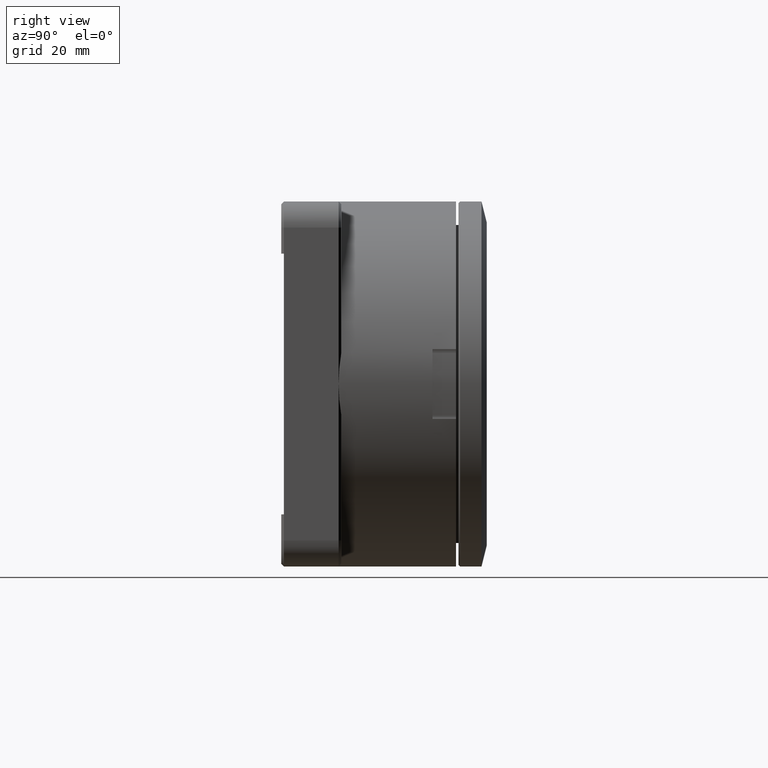
[diagram: clean part render]
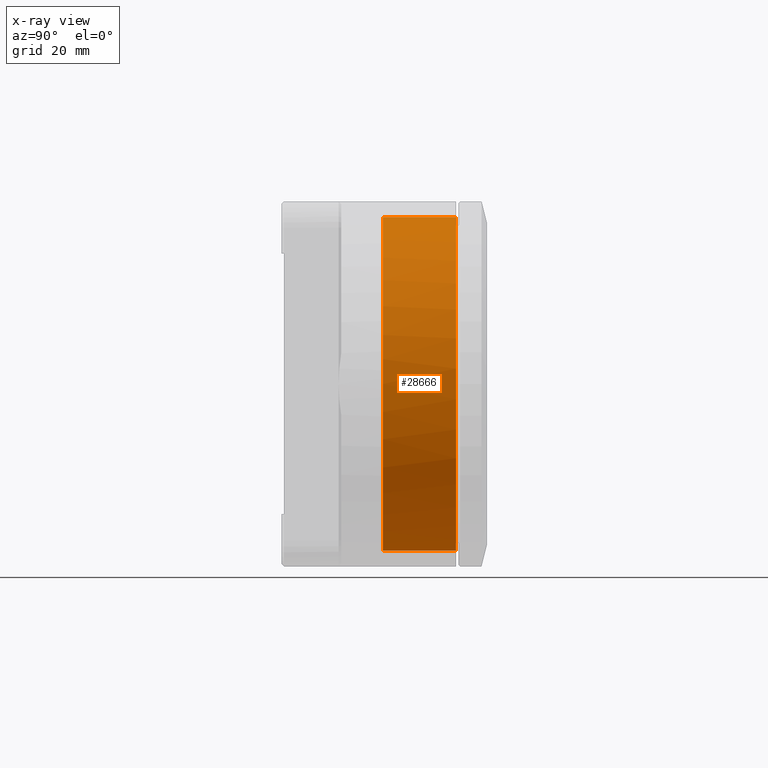
[diagram: x-ray — body ghosted, one internal face saturated and labeled with its STEP entity id]
A machine part, right view, then the same camera in x-ray: the body is ghosted and one INTERNAL B-rep face — a face not visible from any outside direction — is saturated and labeled: STEP entity #28666.
In plain terms, the highlighted cylindrical surface (partial cylindrical patch) has radius 32 mm, axis along (0, -1, 0).
Its self-contained STEP definition (entity closure, byte-faithful):
#604 = CARTESIAN_POINT ( 'NONE',  ( 28.76007075734344900, -5.500000000000000000, 14.18707604156779000 ) ) ;
#698 = DIRECTION ( 'NONE',  ( 0.0000000000000000000, -1.000000000000000000, 0.0000000000000000000 ) ) ;
#1130 = CARTESIAN_POINT ( 'NONE',  ( 24.11315195203609500, -5.500000000000000000, -21.14168161073702700 ) ) ;
#2604 = B_SPLINE_CURVE_WITH_KNOTS ( 'NONE', 3,
 ( #44241, #75432, #50553, #13035, #56819, #19296, #63075, #25589, #69421, #31944, #75720, #38235, #604, #44523, #6941, #50823, #13302, #57105 ),
 .UNSPECIFIED., .F., .F.,
 ( 4, 2, 2, 2, 2, 2, 2, 2, 4 ),
 ( 0.0000000000000000000, 0.1249999999999999400, 0.2499999999999998900, 0.3749999999999999400, 0.5000000000000000000, 0.6250000000000000000, 0.7500000000000001100, 0.8750000000000000000, 1.000000000000000000 ),
 .UNSPECIFIED. ) ;
#6941 = CARTESIAN_POINT ( 'NONE',  ( 30.97521495483896800, -5.500000000000000000, 8.303665489358175800 ) ) ;
#7043 = CARTESIAN_POINT ( 'NONE',  ( 0.0000000000000000000, 8.500000000000000000, 0.0000000000000000000 ) ) ;
#7475 = CARTESIAN_POINT ( 'NONE',  ( 19.52528702524762100, -5.500000000000000000, -25.43969270595383500 ) ) ;
#8870 = EDGE_LOOP ( 'NONE', ( #13939, #69280, #24743, #58976, #63986 ) ) ;
#13035 = CARTESIAN_POINT ( 'NONE',  ( 8.303664184035579200, -5.499999999999997300, 30.97521588060586600 ) ) ;
#13129 = VERTEX_POINT ( 'NONE', #33566 ) ;
#13302 = CARTESIAN_POINT ( 'NONE',  ( 32.00000000000000000, -5.500000000000000900, 2.101151684835313600 ) ) ;
#13813 = CARTESIAN_POINT ( 'NONE',  ( 14.18707626784487100, -5.500000000000000000, -28.76007067725396700 ) ) ;
#13939 = ORIENTED_EDGE ( 'NONE', *, *, #38029, .F. ) ;
#15037 = CARTESIAN_POINT ( 'NONE',  ( 0.0000000000000000000, 8.500000000000000000, 0.0000000000000000000 ) ) ;
#18277 = LINE ( 'NONE', #71955, #33030 ) ;
#19296 = CARTESIAN_POINT ( 'NONE',  ( 14.18707644570336700, -5.499999999999999100, 28.76007127348113500 ) ) ;
#20095 = CARTESIAN_POINT ( 'NONE',  ( 8.303484095118003300, -5.500000000000000000, -30.97525107150426000 ) ) ;
#20584 = VERTEX_POINT ( 'NONE', #57548 ) ;
#21294 = DIRECTION ( 'NONE',  ( 0.0000000000000000000, 0.0000000000000000000, -1.000000000000000000 ) ) ;
#22005 = VERTEX_POINT ( 'NONE', #38226 ) ;
#22577 = AXIS2_PLACEMENT_3D ( 'NONE', #15037, #58834, #21294 ) ;
#24743 = ORIENTED_EDGE ( 'NONE', *, *, #48799, .T. ) ;
#25589 = CARTESIAN_POINT ( 'NONE',  ( 19.52528731583890900, -5.500000000000000000, 25.43969325613025800 ) ) ;
#26111 = CARTESIAN_POINT ( 'NONE',  ( 30.97521586195528400, -5.499999999999999100, -8.303664245566464400 ) ) ;
#26382 = CARTESIAN_POINT ( 'NONE',  ( 2.101333079075502000, -5.500000000000000000, -31.99996388333472600 ) ) ;
#27756 = B_SPLINE_CURVE_WITH_KNOTS ( 'NONE', 3,
 ( #69685, #44762, #63568, #26111, #69950, #32466, #76251, #38776, #1130, #45031, #7475, #51355, #13813, #57609, #20095, #63853, #26382, #70207 ),
 .UNSPECIFIED., .F., .F.,
 ( 4, 2, 2, 2, 2, 2, 2, 2, 4 ),
 ( 0.0000000000000000000, 0.1250000000000000000, 0.2500000000000000000, 0.3750000000000000000, 0.5000000000000000000, 0.6250000000000000000, 0.7500000000000000000, 0.8750000000000000000, 1.000000000000000000 ),
 .UNSPECIFIED. ) ;
#28418 = CIRCLE ( 'NONE', #22577, 32.00000000000000000 ) ;
#28666 = ADVANCED_FACE ( 'NONE', ( #80106 ), #59496, .F. ) ;
#29373 = CARTESIAN_POINT ( 'NONE',  ( 5.126879415925809800E-015, -5.500000000000000000, 32.00000000000000000 ) ) ;
#31944 = CARTESIAN_POINT ( 'NONE',  ( 24.11315234436314400, -5.500000000000001800, 21.14168209366767900 ) ) ;
#32466 = CARTESIAN_POINT ( 'NONE',  ( 28.76007124313779100, -5.500000000000000900, -14.18707650245442400 ) ) ;
#33030 = VECTOR ( 'NONE', #72208, 1000.000000000000000 ) ;
#33566 = CARTESIAN_POINT ( 'NONE',  ( 3.918869757271530300E-015, 8.500000000000000000, 32.00000000000000000 ) ) ;
#33747 = VERTEX_POINT ( 'NONE', #38138 ) ;
#38011 = CARTESIAN_POINT ( 'NONE',  ( 0.0000000000000000000, 8.500000000000000000, -32.00000000000000000 ) ) ;
#38029 = EDGE_CURVE ( 'NONE', #13129, #41108, #18277, .T. ) ;
#38138 = CARTESIAN_POINT ( 'NONE',  ( -4.925544472816763500E-015, -5.499999999999999100, -32.00000000000000000 ) ) ;
#38226 = CARTESIAN_POINT ( 'NONE',  ( 0.0000000000000000000, 8.500000000000000000, -32.00000000000000000 ) ) ;
#38235 = CARTESIAN_POINT ( 'NONE',  ( 27.77436243315414200, -5.500000000000000000, 16.03120797158044700 ) ) ;
#38776 = CARTESIAN_POINT ( 'NONE',  ( 25.43969321532348400, -5.500000000000000900, -19.52528736557157500 ) ) ;
#40534 = LINE ( 'NONE', #38011, #55168 ) ;
#41108 = VERTEX_POINT ( 'NONE', #29373 ) ;
#42344 = EDGE_CURVE ( 'NONE', #20584, #33747, #27756, .T. ) ;
#44241 = CARTESIAN_POINT ( 'NONE',  ( 5.126879415925809800E-015, -5.500000000000000000, 32.00000000000000000 ) ) ;
#44290 = DIRECTION ( 'NONE',  ( 0.0000000000000000000, -1.000000000000000000, 0.0000000000000000000 ) ) ;
#44523 = CARTESIAN_POINT ( 'NONE',  ( 30.36821932337890200, -5.500000000000000900, 10.30466362979795200 ) ) ;
#44762 = CARTESIAN_POINT ( 'NONE',  ( 31.99999999999999300, -5.499999999999999100, -2.101148368241835900 ) ) ;
#45031 = CARTESIAN_POINT ( 'NONE',  ( 21.14168204390289300, -5.500000000000000900, -24.11315238520207800 ) ) ;
#48799 = EDGE_CURVE ( 'NONE', #22005, #33747, #40534, .T. ) ;
#50553 = CARTESIAN_POINT ( 'NONE',  ( 4.182116424996622500, -5.500000000000000000, 31.79504206520087500 ) ) ;
#50823 = CARTESIAN_POINT ( 'NONE',  ( 31.79504299096779700, -5.500000000000000900, 4.182115119674012500 ) ) ;
#50914 = DIRECTION ( 'NONE',  ( 0.0000000000000000000, 0.0000000000000000000, -1.000000000000000000 ) ) ;
#51355 = CARTESIAN_POINT ( 'NONE',  ( 16.03120788800691100, -5.500000000000000900, -27.77436248140907800 ) ) ;
#55168 = VECTOR ( 'NONE', #44290, 1000.000000000000000 ) ;
#56819 = CARTESIAN_POINT ( 'NONE',  ( 10.30466322566239500, -5.500000000000000000, 30.36821880724122400 ) ) ;
#57105 = CARTESIAN_POINT ( 'NONE',  ( 32.00000000000000000, -5.500000000000000000, -9.797174393178825700E-016 ) ) ;
#57548 = CARTESIAN_POINT ( 'NONE',  ( 32.00000000000000000, -5.500000000000000000, -9.797174393178825700E-016 ) ) ;
#57609 = CARTESIAN_POINT ( 'NONE',  ( 10.30466340352088400, -5.500000000000000900, -30.36821940346837700 ) ) ;
#58834 = DIRECTION ( 'NONE',  ( 0.0000000000000000000, -1.000000000000000000, 0.0000000000000000000 ) ) ;
#58976 = ORIENTED_EDGE ( 'NONE', *, *, #42344, .F. ) ;
#59496 = CYLINDRICAL_SURFACE ( 'NONE', #73586, 32.00000000000000000 ) ;
#61776 = EDGE_CURVE ( 'NONE', #22005, #13129, #28418, .T. ) ;
#63075 = CARTESIAN_POINT ( 'NONE',  ( 16.03120759741567300, -5.500000000000000900, 27.77436193123263700 ) ) ;
#63568 = CARTESIAN_POINT ( 'NONE',  ( 31.79504208385145600, -5.500000000000000900, -4.182116363465775400 ) ) ;
#63853 = CARTESIAN_POINT ( 'NONE',  ( 4.182296513914207200, -5.500000000000000900, -31.79500687430251200 ) ) ;
#63986 = ORIENTED_EDGE ( 'NONE', *, *, #70151, .F. ) ;
#69280 = ORIENTED_EDGE ( 'NONE', *, *, #61776, .F. ) ;
#69421 = CARTESIAN_POINT ( 'NONE',  ( 21.14168165157590800, -5.500000000000000000, 24.11315190227135500 ) ) ;
#69685 = CARTESIAN_POINT ( 'NONE',  ( 32.00000000000000000, -5.500000000000000000, -9.797174393178825700E-016 ) ) ;
#69950 = CARTESIAN_POINT ( 'NONE',  ( 30.36821883758457500, -5.500000000000000000, -10.30466316891137200 ) ) ;
#70151 = EDGE_CURVE ( 'NONE', #41108, #20584, #2604, .T. ) ;
#70207 = CARTESIAN_POINT ( 'NONE',  ( -4.925544472816763500E-015, -5.499999999999999100, -32.00000000000000000 ) ) ;
#71955 = CARTESIAN_POINT ( 'NONE',  ( 3.918869757271530300E-015, 8.500000000000000000, 32.00000000000000000 ) ) ;
#72208 = DIRECTION ( 'NONE',  ( 0.0000000000000000000, -1.000000000000000000, 0.0000000000000000000 ) ) ;
#73586 = AXIS2_PLACEMENT_3D ( 'NONE', #7043, #698, #50914 ) ;
#75432 = CARTESIAN_POINT ( 'NONE',  ( 2.100966796780334700, -5.499999999999999100, 32.00003611036982700 ) ) ;
#75720 = CARTESIAN_POINT ( 'NONE',  ( 25.43969275420874600, -5.500000000000000000, 19.52528694167410000 ) ) ;
#76251 = CARTESIAN_POINT ( 'NONE',  ( 27.77436197203935800, -5.500000000000000000, -16.03120754768303200 ) ) ;
#80106 = FACE_OUTER_BOUND ( 'NONE', #8870, .T. ) ;